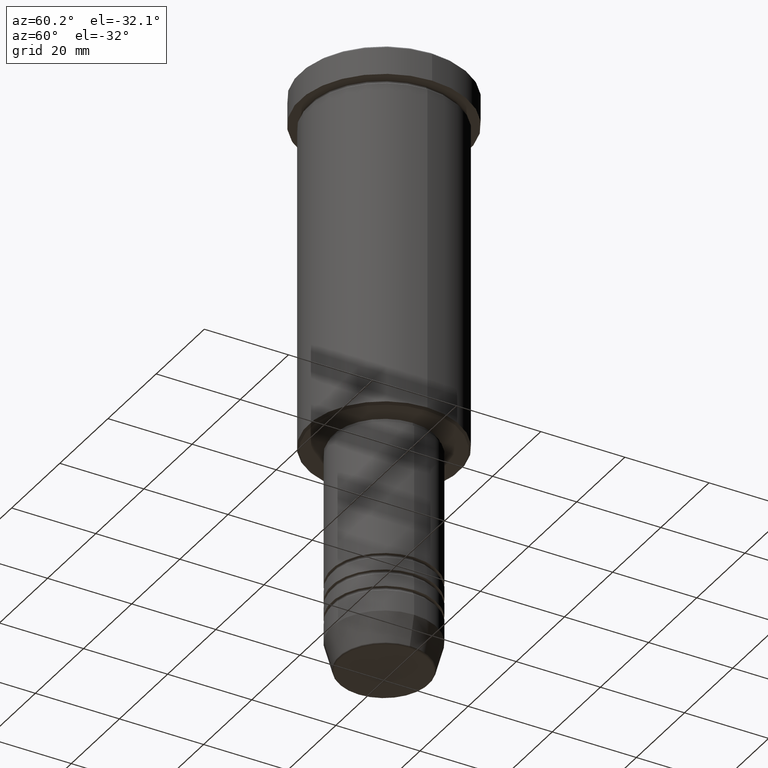
[diagram: clean part render]
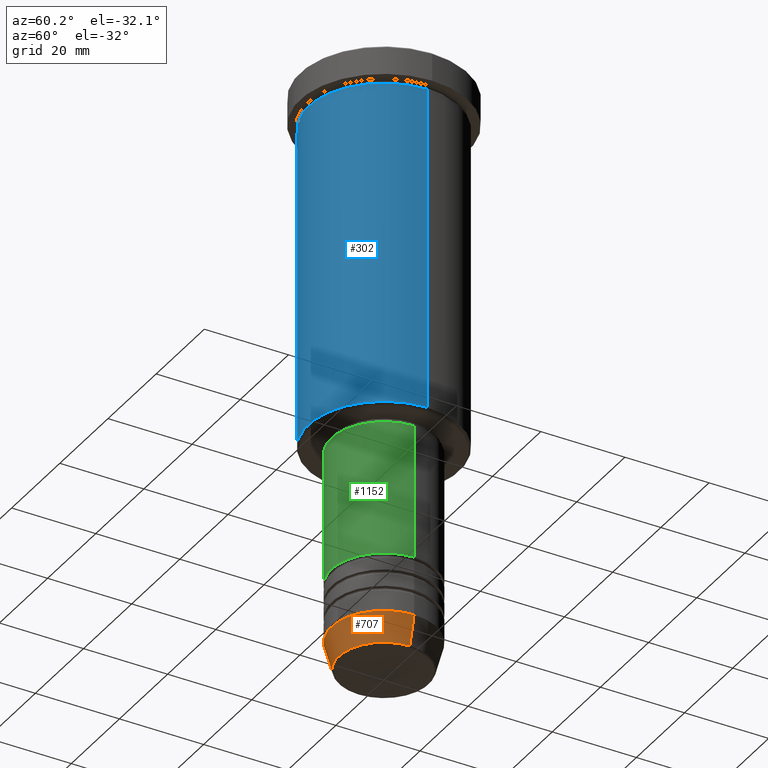
[diagram: same view with three faces highlighted in distinct colors, each labeled with its STEP entity id]
A machine part, auxiliary view with three faces highlighted in distinct colors.
Their STEP definitions:

[orange] entity #707 — the highlighted conical surface has half-angle 15 deg.
#47 = EDGE_LOOP ( 'NONE', ( #474, #653, #370, #943 ) ) ;
#93 = CARTESIAN_POINT ( 'NONE',  ( -12.50000000000000000, 1.530808498934191521E-15, -133.0000000000000000 ) ) ;
#134 = VERTEX_POINT ( 'NONE', #900 ) ;
#153 = CARTESIAN_POINT ( 'NONE',  ( 0.000000000000000000, 0.000000000000000000, -133.0000000000000000 ) ) ;
#164 = DIRECTION ( 'NONE',  ( 0.2588190451025213501, 0.000000000000000000, 0.9659258262890680902 ) ) ;
#187 = CONICAL_SURFACE ( 'NONE', #485, 12.50000000000000000, 0.2617993877991500740 ) ;
#215 = VECTOR ( 'NONE', #164, 1000.000000000000000 ) ;
#301 = CIRCLE ( 'NONE', #832, 10.72365507213718416 ) ;
#342 = CARTESIAN_POINT ( 'NONE',  ( -12.50000000000000000, 1.530808498934191521E-15, -133.0000000000000000 ) ) ;
#370 = ORIENTED_EDGE ( 'NONE', *, *, #1120, .T. ) ;
#406 = CARTESIAN_POINT ( 'NONE',  ( 0.000000000000000000, 0.000000000000000000, -133.0000000000000000 ) ) ;
#462 = DIRECTION ( 'NONE',  ( -0.000000000000000000, -0.000000000000000000, 1.000000000000000000 ) ) ;
#474 = ORIENTED_EDGE ( 'NONE', *, *, #486, .F. ) ;
#475 = VERTEX_POINT ( 'NONE', #1085 ) ;
#485 = AXIS2_PLACEMENT_3D ( 'NONE', #153, #462, #561 ) ;
#486 = EDGE_CURVE ( 'NONE', #475, #491, #1078, .T. ) ;
#491 = VERTEX_POINT ( 'NONE', #342 ) ;
#503 = DIRECTION ( 'NONE',  ( 1.000000000000000000, 0.000000000000000000, 0.000000000000000000 ) ) ;
#520 = DIRECTION ( 'NONE',  ( -0.2588190451025213501, 3.169619151431772337E-17, 0.9659258262890680902 ) ) ;
#531 = CARTESIAN_POINT ( 'NONE',  ( 10.72365507213718416, 0.000000000000000000, -139.6294095225512990 ) ) ;
#561 = DIRECTION ( 'NONE',  ( 1.000000000000000000, 0.000000000000000000, 0.000000000000000000 ) ) ;
#635 = EDGE_CURVE ( 'NONE', #491, #134, #989, .T. ) ;
#653 = ORIENTED_EDGE ( 'NONE', *, *, #852, .T. ) ;
#667 = AXIS2_PLACEMENT_3D ( 'NONE', #406, #853, #503 ) ;
#707 = ADVANCED_FACE ( 'NONE', ( #870 ), #187, .T. ) ;
#832 = AXIS2_PLACEMENT_3D ( 'NONE', #1001, #1181, #911 ) ;
#852 = EDGE_CURVE ( 'NONE', #475, #1136, #301, .T. ) ;
#853 = DIRECTION ( 'NONE',  ( -0.000000000000000000, -0.000000000000000000, 1.000000000000000000 ) ) ;
#870 = FACE_OUTER_BOUND ( 'NONE', #47, .T. ) ;
#900 = CARTESIAN_POINT ( 'NONE',  ( 12.50000000000000000, 0.000000000000000000, -133.0000000000000000 ) ) ;
#911 = DIRECTION ( 'NONE',  ( 1.000000000000000000, 0.000000000000000000, 0.000000000000000000 ) ) ;
#943 = ORIENTED_EDGE ( 'NONE', *, *, #635, .F. ) ;
#989 = CIRCLE ( 'NONE', #667, 12.50000000000000000 ) ;
#1001 = CARTESIAN_POINT ( 'NONE',  ( 0.000000000000000000, 0.000000000000000000, -139.6294095225512990 ) ) ;
#1044 = VECTOR ( 'NONE', #520, 1000.000000000000000 ) ;
#1069 = LINE ( 'NONE', #1075, #215 ) ;
#1075 = CARTESIAN_POINT ( 'NONE',  ( 12.50000000000000000, 0.000000000000000000, -133.0000000000000000 ) ) ;
#1078 = LINE ( 'NONE', #93, #1044 ) ;
#1085 = CARTESIAN_POINT ( 'NONE',  ( -10.72365507213718416, 1.422038742429750121E-15, -139.6294095225512990 ) ) ;
#1120 = EDGE_CURVE ( 'NONE', #1136, #134, #1069, .T. ) ;
#1136 = VERTEX_POINT ( 'NONE', #531 ) ;
#1181 = DIRECTION ( 'NONE',  ( -0.000000000000000000, -0.000000000000000000, 1.000000000000000000 ) ) ;

[blue] entity #302 — the highlighted cylindrical surface (partial cylindrical patch) has radius 18 mm, axis along (-0, -0, 1).
#58 = DIRECTION ( 'NONE',  ( 1.000000000000000000, 0.000000000000000000, 0.000000000000000000 ) ) ;
#65 = ORIENTED_EDGE ( 'NONE', *, *, #964, .F. ) ;
#85 = CARTESIAN_POINT ( 'NONE',  ( 18.00000000000000000, 0.000000000000000000, -85.50000000000000000 ) ) ;
#91 = FACE_OUTER_BOUND ( 'NONE', #882, .T. ) ;
#135 = ORIENTED_EDGE ( 'NONE', *, *, #478, .F. ) ;
#143 = ORIENTED_EDGE ( 'NONE', *, *, #265, .T. ) ;
#145 = VERTEX_POINT ( 'NONE', #85 ) ;
#152 = CARTESIAN_POINT ( 'NONE',  ( 0.000000000000000000, 0.000000000000000000, -7.999999999999996447 ) ) ;
#179 = CARTESIAN_POINT ( 'NONE',  ( -18.00000000000000000, 2.204364238465235428E-15, 0.000000000000000000 ) ) ;
#202 = CARTESIAN_POINT ( 'NONE',  ( -18.00000000000000000, 2.204364238465235428E-15, -7.999999999999996447 ) ) ;
#222 = DIRECTION ( 'NONE',  ( 1.000000000000000000, 0.000000000000000000, 0.000000000000000000 ) ) ;
#241 = DIRECTION ( 'NONE',  ( -0.000000000000000000, -0.000000000000000000, 1.000000000000000000 ) ) ;
#251 = VECTOR ( 'NONE', #346, 1000.000000000000000 ) ;
#254 = AXIS2_PLACEMENT_3D ( 'NONE', #152, #506, #58 ) ;
#260 = CARTESIAN_POINT ( 'NONE',  ( -18.00000000000000000, 2.204364238465235428E-15, -85.50000000000000000 ) ) ;
#265 = EDGE_CURVE ( 'NONE', #1154, #145, #1141, .T. ) ;
#302 = ADVANCED_FACE ( 'NONE', ( #91 ), #776, .T. ) ;
#346 = DIRECTION ( 'NONE',  ( -0.000000000000000000, -0.000000000000000000, 1.000000000000000000 ) ) ;
#352 = CIRCLE ( 'NONE', #254, 18.00000000000000000 ) ;
#358 = CARTESIAN_POINT ( 'NONE',  ( 18.00000000000000000, 0.000000000000000000, -7.999999999999996447 ) ) ;
#402 = DIRECTION ( 'NONE',  ( -0.000000000000000000, -0.000000000000000000, 1.000000000000000000 ) ) ;
#411 = ORIENTED_EDGE ( 'NONE', *, *, #1176, .T. ) ;
#478 = EDGE_CURVE ( 'NONE', #1154, #958, #905, .T. ) ;
#506 = DIRECTION ( 'NONE',  ( -0.000000000000000000, -0.000000000000000000, 1.000000000000000000 ) ) ;
#672 = VERTEX_POINT ( 'NONE', #358 ) ;
#700 = LINE ( 'NONE', #994, #954 ) ;
#776 = CYLINDRICAL_SURFACE ( 'NONE', #946, 18.00000000000000000 ) ;
#789 = DIRECTION ( 'NONE',  ( -0.000000000000000000, -0.000000000000000000, 1.000000000000000000 ) ) ;
#809 = AXIS2_PLACEMENT_3D ( 'NONE', #895, #241, #965 ) ;
#882 = EDGE_LOOP ( 'NONE', ( #135, #143, #411, #65 ) ) ;
#895 = CARTESIAN_POINT ( 'NONE',  ( 0.000000000000000000, 0.000000000000000000, -85.50000000000000000 ) ) ;
#905 = LINE ( 'NONE', #179, #251 ) ;
#946 = AXIS2_PLACEMENT_3D ( 'NONE', #1130, #402, #222 ) ;
#954 = VECTOR ( 'NONE', #789, 1000.000000000000000 ) ;
#958 = VERTEX_POINT ( 'NONE', #202 ) ;
#964 = EDGE_CURVE ( 'NONE', #958, #672, #352, .T. ) ;
#965 = DIRECTION ( 'NONE',  ( -1.000000000000000000, 0.000000000000000000, 0.000000000000000000 ) ) ;
#994 = CARTESIAN_POINT ( 'NONE',  ( 18.00000000000000000, 0.000000000000000000, 0.000000000000000000 ) ) ;
#1130 = CARTESIAN_POINT ( 'NONE',  ( 0.000000000000000000, 0.000000000000000000, 0.000000000000000000 ) ) ;
#1141 = CIRCLE ( 'NONE', #809, 18.00000000000000000 ) ;
#1154 = VERTEX_POINT ( 'NONE', #260 ) ;
#1176 = EDGE_CURVE ( 'NONE', #145, #672, #700, .T. ) ;

[green] entity #1152 — the highlighted cylindrical surface (partial cylindrical patch) has radius 12.5 mm, axis along (-0, -0, 1).
#45 = DIRECTION ( 'NONE',  ( -0.000000000000000000, -0.000000000000000000, 1.000000000000000000 ) ) ;
#62 = AXIS2_PLACEMENT_3D ( 'NONE', #340, #1155, #898 ) ;
#84 = CYLINDRICAL_SURFACE ( 'NONE', #62, 12.50000000000000000 ) ;
#92 = DIRECTION ( 'NONE',  ( 1.000000000000000000, 0.000000000000000000, 0.000000000000000000 ) ) ;
#107 = EDGE_CURVE ( 'NONE', #897, #513, #382, .T. ) ;
#171 = CIRCLE ( 'NONE', #757, 12.50000000000000000 ) ;
#178 = CARTESIAN_POINT ( 'NONE',  ( 12.50000000000000000, 0.000000000000000000, -119.0000000000000000 ) ) ;
#233 = VECTOR ( 'NONE', #396, 1000.000000000000000 ) ;
#312 = ORIENTED_EDGE ( 'NONE', *, *, #617, .F. ) ;
#326 = CARTESIAN_POINT ( 'NONE',  ( -12.50000000000000000, 1.530808498934191521E-15, -87.00000000000002842 ) ) ;
#340 = CARTESIAN_POINT ( 'NONE',  ( 0.000000000000000000, 0.000000000000000000, 0.000000000000000000 ) ) ;
#357 = CARTESIAN_POINT ( 'NONE',  ( 0.000000000000000000, 0.000000000000000000, -87.00000000000002842 ) ) ;
#382 = LINE ( 'NONE', #498, #1159 ) ;
#396 = DIRECTION ( 'NONE',  ( -0.000000000000000000, -0.000000000000000000, 1.000000000000000000 ) ) ;
#439 = CARTESIAN_POINT ( 'NONE',  ( -12.50000000000000000, 1.530808498934191521E-15, -119.0000000000000000 ) ) ;
#455 = DIRECTION ( 'NONE',  ( -0.000000000000000000, -0.000000000000000000, 1.000000000000000000 ) ) ;
#498 = CARTESIAN_POINT ( 'NONE',  ( 12.50000000000000000, 0.000000000000000000, 0.000000000000000000 ) ) ;
#502 = DIRECTION ( 'NONE',  ( 1.000000000000000000, 0.000000000000000000, 0.000000000000000000 ) ) ;
#513 = VERTEX_POINT ( 'NONE', #1018 ) ;
#518 = ORIENTED_EDGE ( 'NONE', *, *, #107, .T. ) ;
#569 = ORIENTED_EDGE ( 'NONE', *, *, #699, .T. ) ;
#600 = CARTESIAN_POINT ( 'NONE',  ( -12.50000000000000000, 1.530808498934191521E-15, 0.000000000000000000 ) ) ;
#604 = LINE ( 'NONE', #600, #233 ) ;
#617 = EDGE_CURVE ( 'NONE', #750, #1063, #604, .T. ) ;
#699 = EDGE_CURVE ( 'NONE', #750, #897, #704, .T. ) ;
#704 = CIRCLE ( 'NONE', #1102, 12.50000000000000000 ) ;
#750 = VERTEX_POINT ( 'NONE', #439 ) ;
#757 = AXIS2_PLACEMENT_3D ( 'NONE', #357, #455, #92 ) ;
#844 = DIRECTION ( 'NONE',  ( -0.000000000000000000, -0.000000000000000000, 1.000000000000000000 ) ) ;
#897 = VERTEX_POINT ( 'NONE', #178 ) ;
#898 = DIRECTION ( 'NONE',  ( 1.000000000000000000, 0.000000000000000000, 0.000000000000000000 ) ) ;
#902 = EDGE_CURVE ( 'NONE', #1063, #513, #171, .T. ) ;
#939 = CARTESIAN_POINT ( 'NONE',  ( 0.000000000000000000, 0.000000000000000000, -119.0000000000000000 ) ) ;
#967 = EDGE_LOOP ( 'NONE', ( #312, #569, #518, #1132 ) ) ;
#1018 = CARTESIAN_POINT ( 'NONE',  ( 12.50000000000000000, 0.000000000000000000, -87.00000000000002842 ) ) ;
#1060 = FACE_OUTER_BOUND ( 'NONE', #967, .T. ) ;
#1063 = VERTEX_POINT ( 'NONE', #326 ) ;
#1102 = AXIS2_PLACEMENT_3D ( 'NONE', #939, #844, #502 ) ;
#1132 = ORIENTED_EDGE ( 'NONE', *, *, #902, .F. ) ;
#1152 = ADVANCED_FACE ( 'NONE', ( #1060 ), #84, .T. ) ;
#1155 = DIRECTION ( 'NONE',  ( -0.000000000000000000, -0.000000000000000000, 1.000000000000000000 ) ) ;
#1159 = VECTOR ( 'NONE', #45, 1000.000000000000000 ) ;